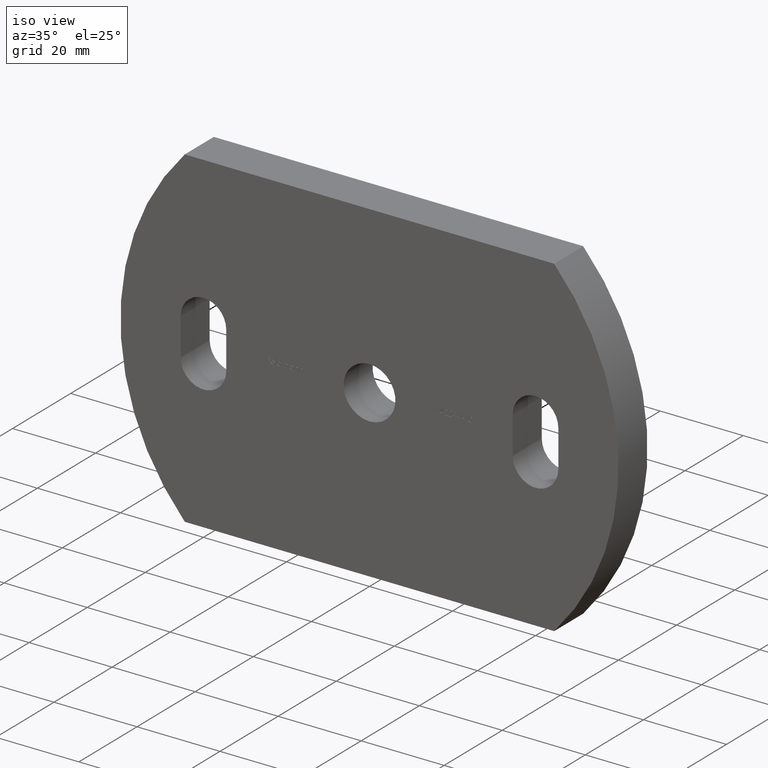
[diagram: clean part render]
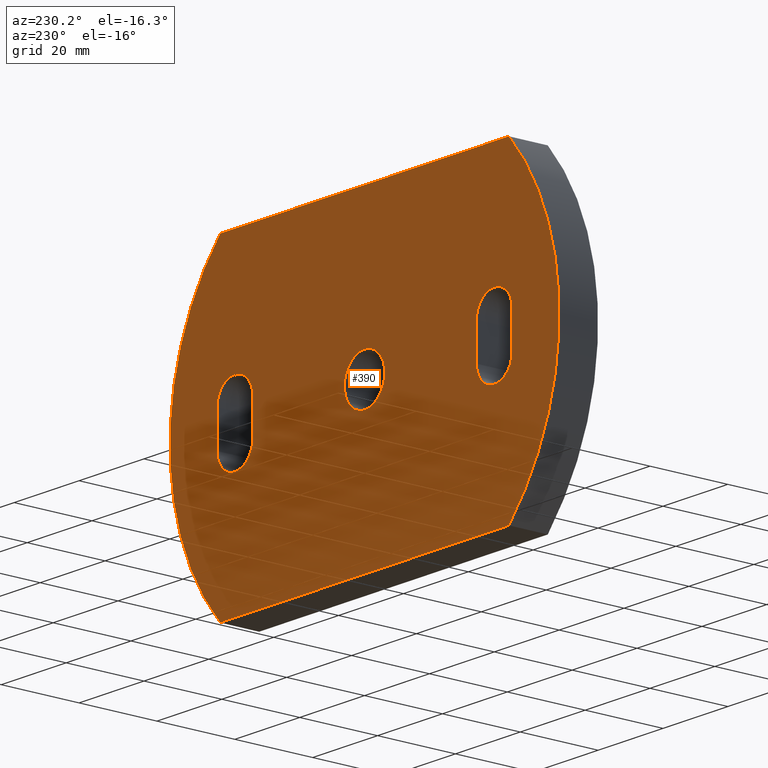
[diagram: tour spotlight — one face highlighted and labeled with its STEP entity id]
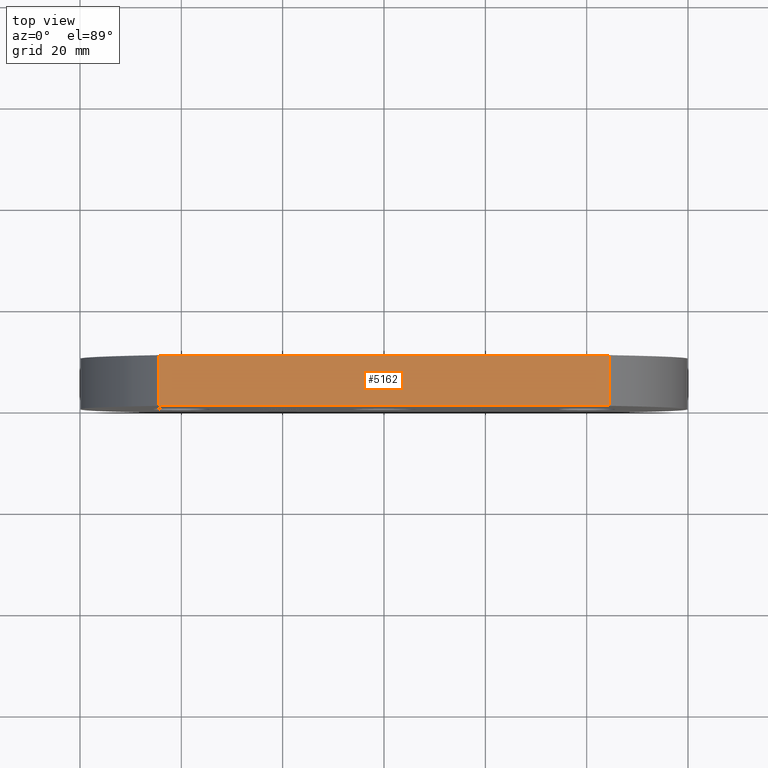
[diagram: tour spotlight — one face highlighted and labeled with its STEP entity id]
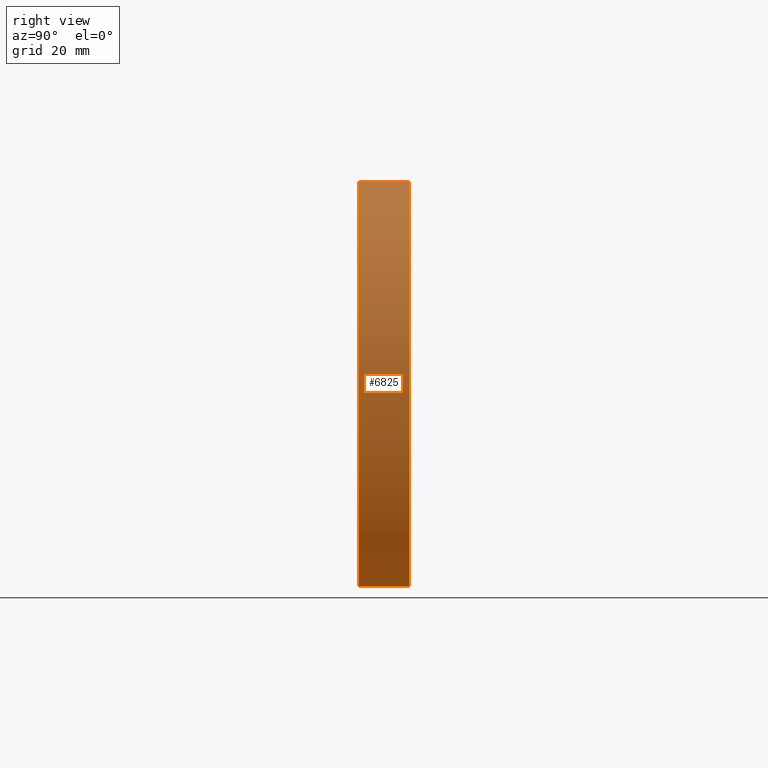
[diagram: tour spotlight — one face highlighted and labeled with its STEP entity id]
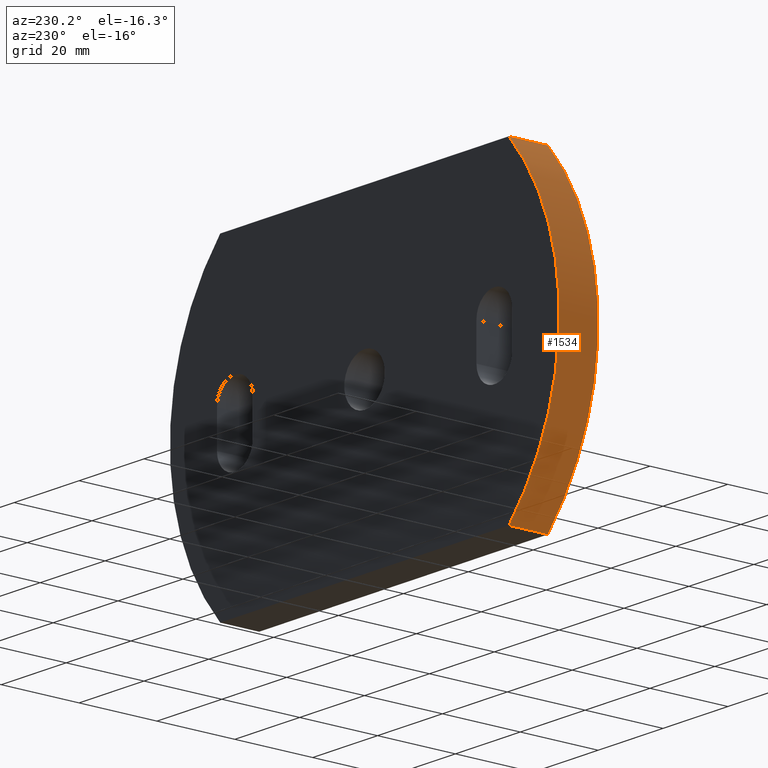
[diagram: tour spotlight — one face highlighted and labeled with its STEP entity id]
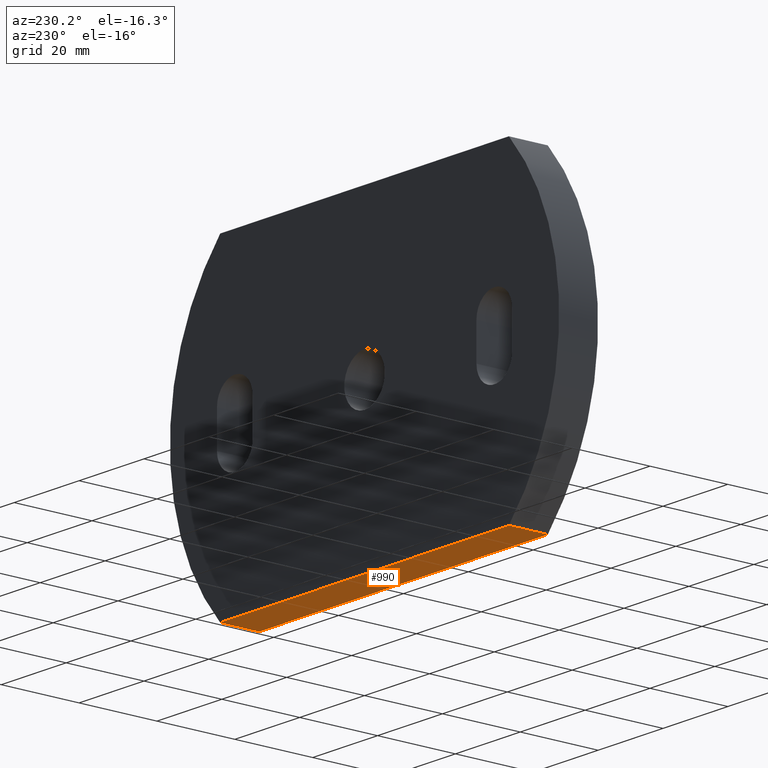
[diagram: tour spotlight — one face highlighted and labeled with its STEP entity id]
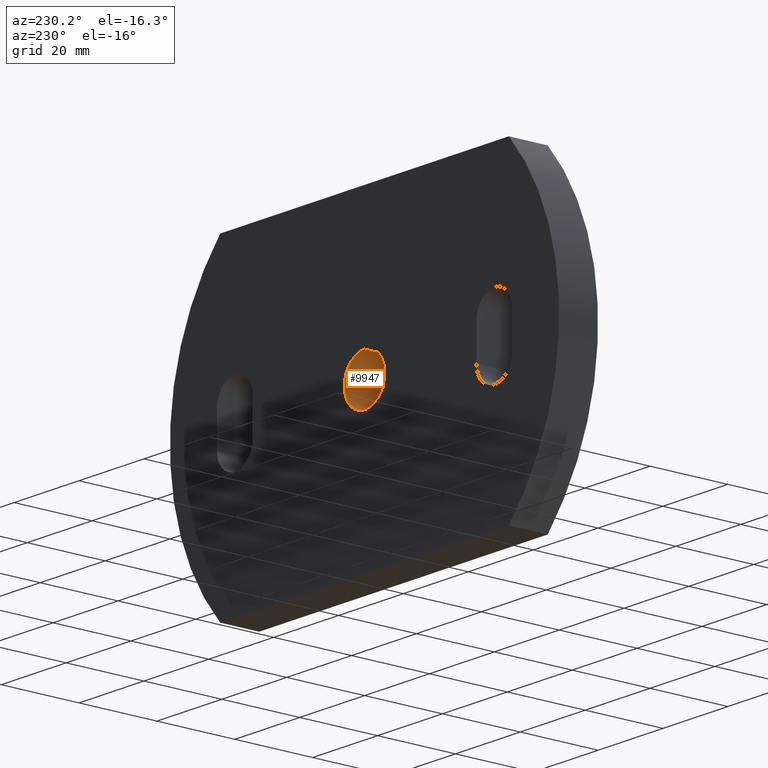
[diagram: tour spotlight — one face highlighted and labeled with its STEP entity id]
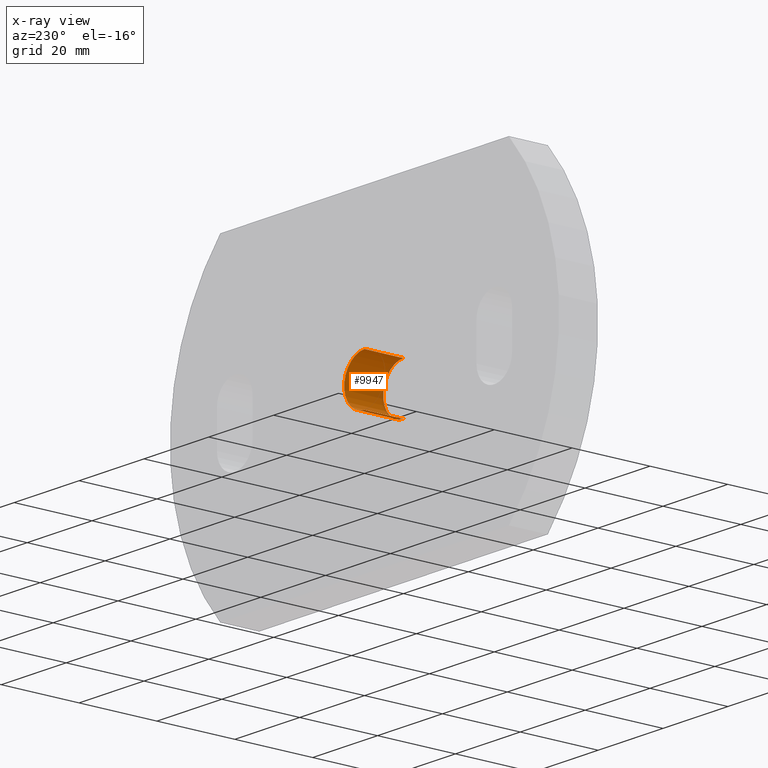
[diagram: x-ray of the same camera — body ghosted, this tour face saturated]
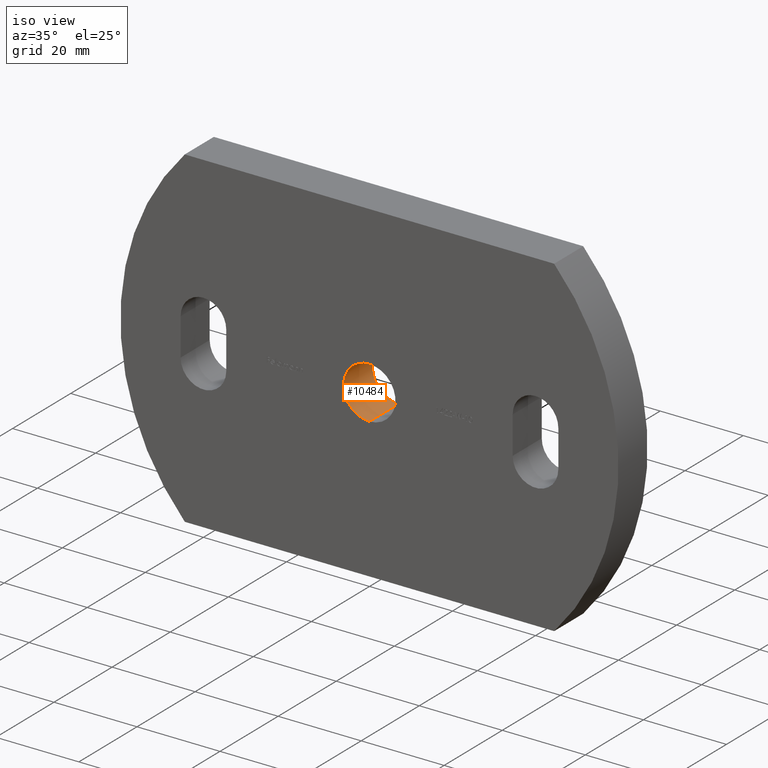
[diagram: tour spotlight — one face highlighted and labeled with its STEP entity id]
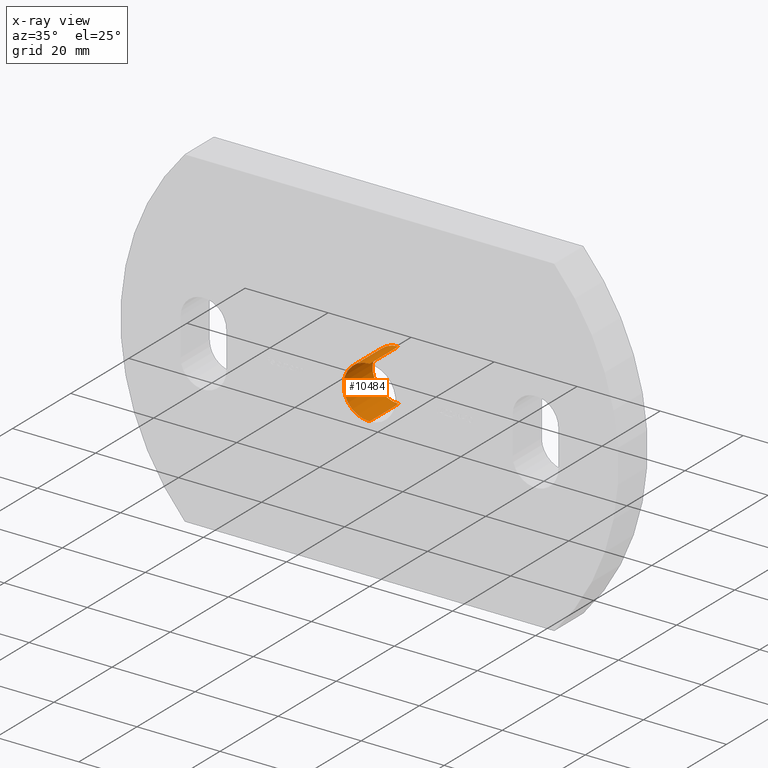
[diagram: x-ray of the same camera — body ghosted, this tour face saturated]
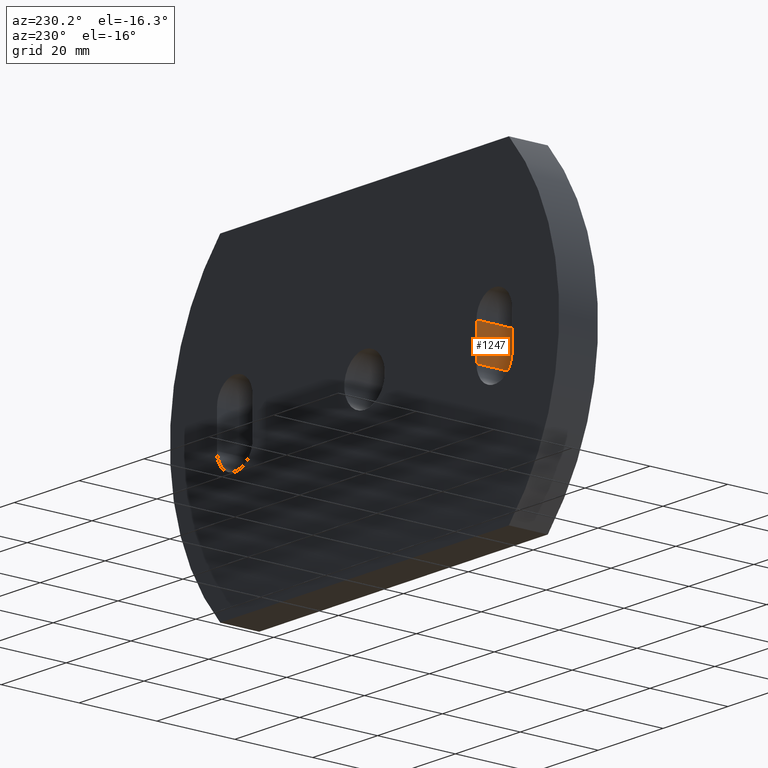
[diagram: tour spotlight — one face highlighted and labeled with its STEP entity id]
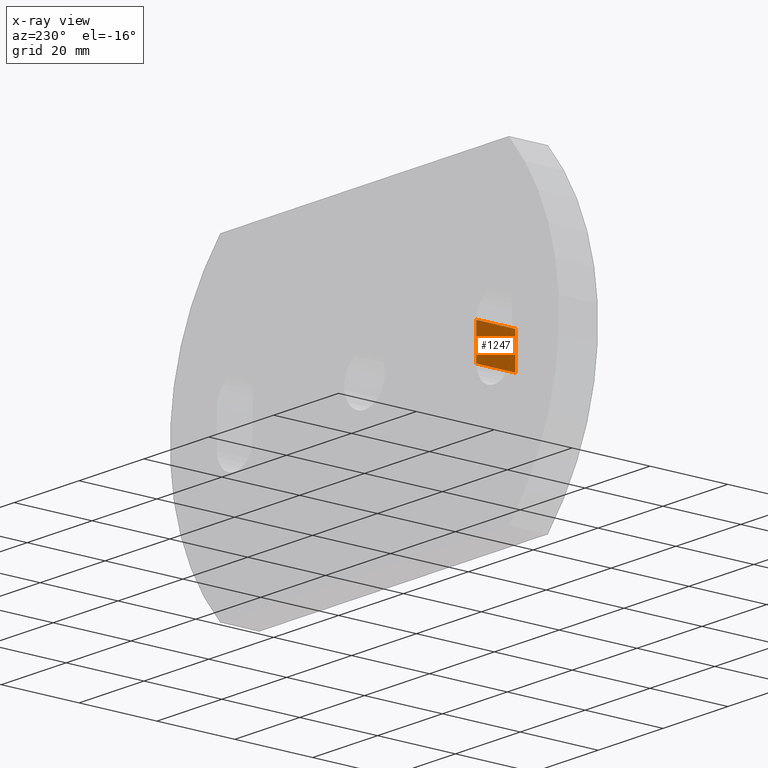
[diagram: x-ray of the same camera — body ghosted, this tour face saturated]
A machine part: a face-by-face anatomy tour. The part has 221 B-rep faces; the first image is the clean iso view, then the 8 largest visible faces are spotlighted one at a time (largest first), each with its STEP entity span.

Face 1 — auxiliary view, entity #390. In plain terms, the highlighted planar face has unit normal (0, -1, 0).
Definition (entity closure, byte-faithful):
#86 = AXIS2_PLACEMENT_3D ( 'NONE', #3558, #5206, #1950 ) ;
#124 = CARTESIAN_POINT ( 'NONE',  ( -34.50000000000000000, 10.00000000000000000, 4.499999999999987600 ) ) ;
#176 = CARTESIAN_POINT ( 'NONE',  ( 7.654042494670957600E-016, 10.00000000000000000, -6.250000000000000000 ) ) ;
#387 = LINE ( 'NONE', #2197, #8584 ) ;
#390 = ADVANCED_FACE ( 'NONE', ( #7769, #3427, #4581, #1241 ), #6717, .F. ) ;
#422 = DIRECTION ( 'NONE',  ( 0.0000000000000000000, 0.0000000000000000000, 1.000000000000000000 ) ) ;
#580 = CIRCLE ( 'NONE', #86, 59.36290322580642700 ) ;
#766 = CARTESIAN_POINT ( 'NONE',  ( 40.00000000000000000, 10.00000000000000000, -4.499999999999992900 ) ) ;
#771 = CARTESIAN_POINT ( 'NONE',  ( -40.00000000000000000, 10.00000000000000000, 4.499999999999992900 ) ) ;
#856 = CARTESIAN_POINT ( 'NONE',  ( -45.50000000000000000, 10.00000000000000000, -4.499999999999989300 ) ) ;
#916 = EDGE_CURVE ( 'NONE', #930, #8709, #7151, .T. ) ;
#921 = CARTESIAN_POINT ( 'NONE',  ( 44.49999999999997900, 10.00000000000000000, 40.00000000000001400 ) ) ;
#930 = VERTEX_POINT ( 'NONE', #1090 ) ;
#947 = DIRECTION ( 'NONE',  ( 0.0000000000000000000, 1.000000000000000000, 0.0000000000000000000 ) ) ;
#1042 = DIRECTION ( 'NONE',  ( 1.000000000000000000, 0.0000000000000000000, 2.338953001317043400E-016 ) ) ;
#1090 = CARTESIAN_POINT ( 'NONE',  ( -44.49999999999998600, 10.00000000000000000, -40.00000000000002800 ) ) ;
#1156 = ORIENTED_EDGE ( 'NONE', *, *, #9298, .F. ) ;
#1157 = AXIS2_PLACEMENT_3D ( 'NONE', #8767, #4562, #3892 ) ;
#1241 = FACE_OUTER_BOUND ( 'NONE', #10273, .T. ) ;
#1340 = CARTESIAN_POINT ( 'NONE',  ( -45.50000000000000000, 10.00000000000000000, 4.499999999999986700 ) ) ;
#1404 = DIRECTION ( 'NONE',  ( -0.0000000000000000000, -0.0000000000000000000, -1.000000000000000000 ) ) ;
#1619 = VERTEX_POINT ( 'NONE', #124 ) ;
#1651 = DIRECTION ( 'NONE',  ( 0.0000000000000000000, 0.0000000000000000000, 1.000000000000000000 ) ) ;
#1862 = EDGE_CURVE ( 'NONE', #6417, #5271, #6646, .T. ) ;
#1950 = DIRECTION ( 'NONE',  ( 0.0000000000000000000, 0.0000000000000000000, -1.000000000000000000 ) ) ;
#2050 = ORIENTED_EDGE ( 'NONE', *, *, #8925, .F. ) ;
#2094 = CIRCLE ( 'NONE', #8159, 6.250000000000000000 ) ;
#2197 = CARTESIAN_POINT ( 'NONE',  ( 45.50000000000000000, 10.00000000000000000, -4.500000000000005300 ) ) ;
#2225 = ORIENTED_EDGE ( 'NONE', *, *, #916, .T. ) ;
#2283 = VERTEX_POINT ( 'NONE', #8888 ) ;
#2317 = DIRECTION ( 'NONE',  ( 0.0000000000000000000, 0.0000000000000000000, 1.000000000000000000 ) ) ;
#2424 = ORIENTED_EDGE ( 'NONE', *, *, #3544, .F. ) ;
#2542 = CARTESIAN_POINT ( 'NONE',  ( -40.00000000000000000, 10.00000000000000000, -4.500000000000008000 ) ) ;
#2612 = ORIENTED_EDGE ( 'NONE', *, *, #4220, .F. ) ;
#2644 = EDGE_CURVE ( 'NONE', #10210, #10481, #4193, .T. ) ;
#2716 = CIRCLE ( 'NONE', #8055, 5.499999999999998200 ) ;
#2751 = LINE ( 'NONE', #5598, #4437 ) ;
#2857 = DIRECTION ( 'NONE',  ( 0.0000000000000000000, 0.0000000000000000000, 1.000000000000000000 ) ) ;
#2953 = CIRCLE ( 'NONE', #4996, 5.499999999999999100 ) ;
#3082 = LINE ( 'NONE', #8119, #5128 ) ;
#3131 = CARTESIAN_POINT ( 'NONE',  ( -40.00000000000000000, 10.00000000000000000, 9.999999999999991100 ) ) ;
#3186 = DIRECTION ( 'NONE',  ( 0.0000000000000000000, 0.0000000000000000000, 1.000000000000000000 ) ) ;
#3206 = DIRECTION ( 'NONE',  ( 0.0000000000000000000, 0.0000000000000000000, 1.000000000000000000 ) ) ;
#3263 = EDGE_CURVE ( 'NONE', #5471, #8966, #580, .T. ) ;
#3392 = DIRECTION ( 'NONE',  ( 0.0000000000000000000, 0.0000000000000000000, 1.000000000000000000 ) ) ;
#3400 = ORIENTED_EDGE ( 'NONE', *, *, #4766, .F. ) ;
#3417 = DIRECTION ( 'NONE',  ( 0.0000000000000000000, -1.000000000000000000, 0.0000000000000000000 ) ) ;
#3427 = FACE_BOUND ( 'NONE', #8897, .T. ) ;
#3544 = EDGE_CURVE ( 'NONE', #5024, #6417, #5054, .T. ) ;
#3558 = CARTESIAN_POINT ( 'NONE',  ( 0.6370967741935809100, 10.00000000000000000, 0.0000000000000000000 ) ) ;
#3647 = VERTEX_POINT ( 'NONE', #8158 ) ;
#3775 = DIRECTION ( 'NONE',  ( 0.0000000000000000000, 1.000000000000000000, 0.0000000000000000000 ) ) ;
#3892 = DIRECTION ( 'NONE',  ( 0.0000000000000000000, 0.0000000000000000000, 1.000000000000000000 ) ) ;
#4020 = CARTESIAN_POINT ( 'NONE',  ( 0.0000000000000000000, 10.00000000000000000, 0.0000000000000000000 ) ) ;
#4086 = CARTESIAN_POINT ( 'NONE',  ( 34.50000000000000000, 10.00000000000000000, -4.500000000000003600 ) ) ;
#4193 = CIRCLE ( 'NONE', #5830, 5.499999999999998200 ) ;
#4220 = EDGE_CURVE ( 'NONE', #4521, #2283, #5673, .T. ) ;
#4278 = EDGE_CURVE ( 'NONE', #2283, #4521, #2094, .T. ) ;
#4437 = VECTOR ( 'NONE', #1651, 1000.000000000000000 ) ;
#4513 = EDGE_CURVE ( 'NONE', #8709, #5471, #10444, .T. ) ;
#4521 = VERTEX_POINT ( 'NONE', #176 ) ;
#4532 = DIRECTION ( 'NONE',  ( -1.000000000000000000, -0.0000000000000000000, -1.559302000878029000E-016 ) ) ;
#4562 = DIRECTION ( 'NONE',  ( 0.0000000000000000000, 1.000000000000000000, 0.0000000000000000000 ) ) ;
#4581 = FACE_BOUND ( 'NONE', #10213, .T. ) ;
#4766 = EDGE_CURVE ( 'NONE', #10481, #4998, #2751, .T. ) ;
#4861 = CIRCLE ( 'NONE', #8990, 5.499999999999999100 ) ;
#4886 = AXIS2_PLACEMENT_3D ( 'NONE', #766, #8891, #9718 ) ;
#4996 = AXIS2_PLACEMENT_3D ( 'NONE', #771, #5696, #3206 ) ;
#4998 = VERTEX_POINT ( 'NONE', #1340 ) ;
#5024 = VERTEX_POINT ( 'NONE', #7179 ) ;
#5054 = CIRCLE ( 'NONE', #4886, 5.499999999999998200 ) ;
#5128 = VECTOR ( 'NONE', #8953, 1000.000000000000000 ) ;
#5206 = DIRECTION ( 'NONE',  ( 0.0000000000000000000, 1.000000000000000000, -0.0000000000000000000 ) ) ;
#5229 = ORIENTED_EDGE ( 'NONE', *, *, #3263, .T. ) ;
#5271 = VERTEX_POINT ( 'NONE', #6667 ) ;
#5376 = ORIENTED_EDGE ( 'NONE', *, *, #4278, .F. ) ;
#5471 = VERTEX_POINT ( 'NONE', #921 ) ;
#5559 = VERTEX_POINT ( 'NONE', #7813 ) ;
#5598 = CARTESIAN_POINT ( 'NONE',  ( -45.50000000000000000, 10.00000000000000000, -4.499999999999989300 ) ) ;
#5630 = CIRCLE ( 'NONE', #1157, 5.499999999999998200 ) ;
#5654 = LINE ( 'NONE', #10352, #9127 ) ;
#5670 = CARTESIAN_POINT ( 'NONE',  ( 44.49999999999999300, 10.00000000000000000, -39.99999999999999300 ) ) ;
#5673 = CIRCLE ( 'NONE', #10181, 6.250000000000000000 ) ;
#5696 = DIRECTION ( 'NONE',  ( 0.0000000000000000000, 1.000000000000000000, 0.0000000000000000000 ) ) ;
#5805 = ORIENTED_EDGE ( 'NONE', *, *, #4513, .T. ) ;
#5830 = AXIS2_PLACEMENT_3D ( 'NONE', #2542, #7514, #8223 ) ;
#6027 = CARTESIAN_POINT ( 'NONE',  ( -0.6370967741935185100, 10.00000000000000000, 0.0000000000000000000 ) ) ;
#6172 = EDGE_CURVE ( 'NONE', #8966, #930, #5654, .T. ) ;
#6417 = VERTEX_POINT ( 'NONE', #4086 ) ;
#6579 = ORIENTED_EDGE ( 'NONE', *, *, #9366, .F. ) ;
#6646 = LINE ( 'NONE', #9008, #9058 ) ;
#6667 = CARTESIAN_POINT ( 'NONE',  ( 34.50000000000000000, 10.00000000000000000, 4.500000000000001800 ) ) ;
#6709 = CARTESIAN_POINT ( 'NONE',  ( -44.50000000000002100, 10.00000000000000000, 39.99999999999999300 ) ) ;
#6717 = PLANE ( 'NONE',  #7549 ) ;
#6954 = AXIS2_PLACEMENT_3D ( 'NONE', #6027, #7739, #2857 ) ;
#7005 = ORIENTED_EDGE ( 'NONE', *, *, #6172, .T. ) ;
#7131 = EDGE_CURVE ( 'NONE', #5271, #3647, #2716, .T. ) ;
#7132 = DIRECTION ( 'NONE',  ( 0.0000000000000000000, 1.000000000000000000, 0.0000000000000000000 ) ) ;
#7151 = CIRCLE ( 'NONE', #6954, 59.36290322580647700 ) ;
#7179 = CARTESIAN_POINT ( 'NONE',  ( 45.50000000000000000, 10.00000000000000000, -4.500000000000005300 ) ) ;
#7226 = CARTESIAN_POINT ( 'NONE',  ( 0.0000000000000000000, 10.00000000000000000, 0.0000000000000000000 ) ) ;
#7486 = DIRECTION ( 'NONE',  ( 0.0000000000000000000, 0.0000000000000000000, 1.000000000000000000 ) ) ;
#7514 = DIRECTION ( 'NONE',  ( 0.0000000000000000000, 1.000000000000000000, 0.0000000000000000000 ) ) ;
#7522 = DIRECTION ( 'NONE',  ( 0.0000000000000000000, -0.0000000000000000000, -1.000000000000000000 ) ) ;
#7549 = AXIS2_PLACEMENT_3D ( 'NONE', #8311, #3417, #7522 ) ;
#7628 = EDGE_LOOP ( 'NONE', ( #9384, #2424, #6579, #2050, #10061 ) ) ;
#7739 = DIRECTION ( 'NONE',  ( 0.0000000000000000000, 1.000000000000000000, 0.0000000000000000000 ) ) ;
#7745 = VECTOR ( 'NONE', #1042, 1000.000000000000000 ) ;
#7769 = FACE_BOUND ( 'NONE', #7628, .T. ) ;
#7813 = CARTESIAN_POINT ( 'NONE',  ( 45.50000000000000000, 10.00000000000000000, 4.500000000000005300 ) ) ;
#7865 = VERTEX_POINT ( 'NONE', #3131 ) ;
#8055 = AXIS2_PLACEMENT_3D ( 'NONE', #10082, #947, #7486 ) ;
#8078 = ORIENTED_EDGE ( 'NONE', *, *, #2644, .F. ) ;
#8119 = CARTESIAN_POINT ( 'NONE',  ( -34.50000000000000000, 10.00000000000000000, -4.499999999999987600 ) ) ;
#8127 = EDGE_CURVE ( 'NONE', #1619, #10210, #3082, .T. ) ;
#8158 = CARTESIAN_POINT ( 'NONE',  ( 40.00000000000000000, 10.00000000000000000, 10.00000000000000500 ) ) ;
#8159 = AXIS2_PLACEMENT_3D ( 'NONE', #4020, #9874, #3186 ) ;
#8223 = DIRECTION ( 'NONE',  ( 0.0000000000000000000, 0.0000000000000000000, 1.000000000000000000 ) ) ;
#8311 = CARTESIAN_POINT ( 'NONE',  ( 0.6370967741935809100, 10.00000000000000000, 0.0000000000000000000 ) ) ;
#8584 = VECTOR ( 'NONE', #1404, 1000.000000000000000 ) ;
#8650 = CARTESIAN_POINT ( 'NONE',  ( -40.00000000000000000, 10.00000000000000000, 4.499999999999992900 ) ) ;
#8709 = VERTEX_POINT ( 'NONE', #9024 ) ;
#8767 = CARTESIAN_POINT ( 'NONE',  ( 40.00000000000000000, 10.00000000000000000, 4.500000000000007100 ) ) ;
#8838 = ORIENTED_EDGE ( 'NONE', *, *, #9497, .F. ) ;
#8888 = CARTESIAN_POINT ( 'NONE',  ( 0.0000000000000000000, 10.00000000000000000, 6.250000000000000000 ) ) ;
#8891 = DIRECTION ( 'NONE',  ( 0.0000000000000000000, 1.000000000000000000, 0.0000000000000000000 ) ) ;
#8897 = EDGE_LOOP ( 'NONE', ( #3400, #8078, #10083, #8838, #1156 ) ) ;
#8925 = EDGE_CURVE ( 'NONE', #3647, #5559, #5630, .T. ) ;
#8953 = DIRECTION ( 'NONE',  ( -0.0000000000000000000, -0.0000000000000000000, -1.000000000000000000 ) ) ;
#8966 = VERTEX_POINT ( 'NONE', #5670 ) ;
#8990 = AXIS2_PLACEMENT_3D ( 'NONE', #8650, #3775, #422 ) ;
#9008 = CARTESIAN_POINT ( 'NONE',  ( 34.50000000000000000, 10.00000000000000000, -4.500000000000003600 ) ) ;
#9024 = CARTESIAN_POINT ( 'NONE',  ( -44.50000000000002100, 10.00000000000000000, 39.99999999999999300 ) ) ;
#9058 = VECTOR ( 'NONE', #3392, 1000.000000000000000 ) ;
#9127 = VECTOR ( 'NONE', #4532, 1000.000000000000000 ) ;
#9298 = EDGE_CURVE ( 'NONE', #4998, #7865, #4861, .T. ) ;
#9366 = EDGE_CURVE ( 'NONE', #5559, #5024, #387, .T. ) ;
#9384 = ORIENTED_EDGE ( 'NONE', *, *, #1862, .F. ) ;
#9497 = EDGE_CURVE ( 'NONE', #7865, #1619, #2953, .T. ) ;
#9718 = DIRECTION ( 'NONE',  ( 0.0000000000000000000, 0.0000000000000000000, 1.000000000000000000 ) ) ;
#9874 = DIRECTION ( 'NONE',  ( 0.0000000000000000000, 1.000000000000000000, 0.0000000000000000000 ) ) ;
#10061 = ORIENTED_EDGE ( 'NONE', *, *, #7131, .F. ) ;
#10082 = CARTESIAN_POINT ( 'NONE',  ( 40.00000000000000000, 10.00000000000000000, 4.500000000000007100 ) ) ;
#10083 = ORIENTED_EDGE ( 'NONE', *, *, #8127, .F. ) ;
#10181 = AXIS2_PLACEMENT_3D ( 'NONE', #7226, #7132, #2317 ) ;
#10210 = VERTEX_POINT ( 'NONE', #10221 ) ;
#10213 = EDGE_LOOP ( 'NONE', ( #5376, #2612 ) ) ;
#10221 = CARTESIAN_POINT ( 'NONE',  ( -34.50000000000000000, 10.00000000000000000, -4.499999999999987600 ) ) ;
#10273 = EDGE_LOOP ( 'NONE', ( #5229, #7005, #2225, #5805 ) ) ;
#10352 = CARTESIAN_POINT ( 'NONE',  ( -44.50000000000000000, 10.00000000000000000, -40.00000000000000700 ) ) ;
#10444 = LINE ( 'NONE', #6709, #7745 ) ;
#10481 = VERTEX_POINT ( 'NONE', #856 ) ;

Face 2 — top view, entity #5162. In plain terms, the highlighted planar face has unit normal (0, 0, -1).
Definition (entity closure, byte-faithful):
#122 = CARTESIAN_POINT ( 'NONE',  ( -44.50000000000002100, 0.0000000000000000000, 39.99999999999999300 ) ) ;
#406 = VECTOR ( 'NONE', #10250, 1000.000000000000000 ) ;
#559 = CARTESIAN_POINT ( 'NONE',  ( 44.49999999999997900, 10.00000000000000000, 40.00000000000001400 ) ) ;
#650 = EDGE_LOOP ( 'NONE', ( #6087, #2527, #1996, #1465 ) ) ;
#921 = CARTESIAN_POINT ( 'NONE',  ( 44.49999999999997900, 10.00000000000000000, 40.00000000000001400 ) ) ;
#997 = VERTEX_POINT ( 'NONE', #122 ) ;
#1042 = DIRECTION ( 'NONE',  ( 1.000000000000000000, 0.0000000000000000000, 2.338953001317043400E-016 ) ) ;
#1465 = ORIENTED_EDGE ( 'NONE', *, *, #2830, .T. ) ;
#1996 = ORIENTED_EDGE ( 'NONE', *, *, #4513, .F. ) ;
#2512 = VECTOR ( 'NONE', #4270, 1000.000000000000000 ) ;
#2527 = ORIENTED_EDGE ( 'NONE', *, *, #7239, .F. ) ;
#2830 = EDGE_CURVE ( 'NONE', #8709, #997, #3571, .T. ) ;
#2984 = VERTEX_POINT ( 'NONE', #5435 ) ;
#2996 = AXIS2_PLACEMENT_3D ( 'NONE', #5272, #5634, #4827 ) ;
#3453 = CARTESIAN_POINT ( 'NONE',  ( -44.50000000000002100, 10.00000000000000000, 39.99999999999999300 ) ) ;
#3571 = LINE ( 'NONE', #3453, #2512 ) ;
#4006 = LINE ( 'NONE', #559, #406 ) ;
#4270 = DIRECTION ( 'NONE',  ( -0.0000000000000000000, -1.000000000000000000, -0.0000000000000000000 ) ) ;
#4513 = EDGE_CURVE ( 'NONE', #8709, #5471, #10444, .T. ) ;
#4827 = DIRECTION ( 'NONE',  ( -1.000000000000000000, 0.0000000000000000000, -2.338953001317043400E-016 ) ) ;
#5162 = ADVANCED_FACE ( 'NONE', ( #9284 ), #10193, .F. ) ;
#5272 = CARTESIAN_POINT ( 'NONE',  ( -44.50000000000002100, 10.00000000000000000, 39.99999999999999300 ) ) ;
#5293 = CARTESIAN_POINT ( 'NONE',  ( -44.50000000000002100, 0.0000000000000000000, 39.99999999999999300 ) ) ;
#5435 = CARTESIAN_POINT ( 'NONE',  ( 44.49999999999997900, 0.0000000000000000000, 40.00000000000001400 ) ) ;
#5471 = VERTEX_POINT ( 'NONE', #921 ) ;
#5634 = DIRECTION ( 'NONE',  ( 2.338953001317043400E-016, 0.0000000000000000000, -1.000000000000000000 ) ) ;
#6087 = ORIENTED_EDGE ( 'NONE', *, *, #6266, .T. ) ;
#6266 = EDGE_CURVE ( 'NONE', #997, #2984, #6838, .T. ) ;
#6709 = CARTESIAN_POINT ( 'NONE',  ( -44.50000000000002100, 10.00000000000000000, 39.99999999999999300 ) ) ;
#6838 = LINE ( 'NONE', #5293, #10533 ) ;
#7239 = EDGE_CURVE ( 'NONE', #5471, #2984, #4006, .T. ) ;
#7745 = VECTOR ( 'NONE', #1042, 1000.000000000000000 ) ;
#7764 = DIRECTION ( 'NONE',  ( 1.000000000000000000, 0.0000000000000000000, 2.338953001317043400E-016 ) ) ;
#8709 = VERTEX_POINT ( 'NONE', #9024 ) ;
#9024 = CARTESIAN_POINT ( 'NONE',  ( -44.50000000000002100, 10.00000000000000000, 39.99999999999999300 ) ) ;
#9284 = FACE_OUTER_BOUND ( 'NONE', #650, .T. ) ;
#10193 = PLANE ( 'NONE',  #2996 ) ;
#10250 = DIRECTION ( 'NONE',  ( -0.0000000000000000000, -1.000000000000000000, -0.0000000000000000000 ) ) ;
#10444 = LINE ( 'NONE', #6709, #7745 ) ;
#10533 = VECTOR ( 'NONE', #7764, 1000.000000000000000 ) ;

Face 3 — right view, entity #6825. In plain terms, the highlighted cylindrical surface (partial cylindrical patch) has radius 59.3629 mm, axis along (-0, -1, -0).
Definition (entity closure, byte-faithful):
#86 = AXIS2_PLACEMENT_3D ( 'NONE', #3558, #5206, #1950 ) ;
#208 = VECTOR ( 'NONE', #5317, 1000.000000000000000 ) ;
#406 = VECTOR ( 'NONE', #10250, 1000.000000000000000 ) ;
#444 = AXIS2_PLACEMENT_3D ( 'NONE', #2935, #6152, #2152 ) ;
#559 = CARTESIAN_POINT ( 'NONE',  ( 44.49999999999997900, 10.00000000000000000, 40.00000000000001400 ) ) ;
#580 = CIRCLE ( 'NONE', #86, 59.36290322580642700 ) ;
#897 = AXIS2_PLACEMENT_3D ( 'NONE', #3488, #9277, #4230 ) ;
#921 = CARTESIAN_POINT ( 'NONE',  ( 44.49999999999997900, 10.00000000000000000, 40.00000000000001400 ) ) ;
#1950 = DIRECTION ( 'NONE',  ( 0.0000000000000000000, 0.0000000000000000000, -1.000000000000000000 ) ) ;
#2152 = DIRECTION ( 'NONE',  ( 0.0000000000000000000, 0.0000000000000000000, -1.000000000000000000 ) ) ;
#2318 = FACE_OUTER_BOUND ( 'NONE', #7641, .T. ) ;
#2935 = CARTESIAN_POINT ( 'NONE',  ( 0.6370967741935809100, 10.00000000000000000, 0.0000000000000000000 ) ) ;
#2984 = VERTEX_POINT ( 'NONE', #5435 ) ;
#3072 = VERTEX_POINT ( 'NONE', #7123 ) ;
#3263 = EDGE_CURVE ( 'NONE', #5471, #8966, #580, .T. ) ;
#3317 = EDGE_CURVE ( 'NONE', #8966, #3072, #8264, .T. ) ;
#3488 = CARTESIAN_POINT ( 'NONE',  ( 0.6370967741935809100, 0.0000000000000000000, 0.0000000000000000000 ) ) ;
#3558 = CARTESIAN_POINT ( 'NONE',  ( 0.6370967741935809100, 10.00000000000000000, 0.0000000000000000000 ) ) ;
#4006 = LINE ( 'NONE', #559, #406 ) ;
#4230 = DIRECTION ( 'NONE',  ( 0.0000000000000000000, 0.0000000000000000000, -1.000000000000000000 ) ) ;
#4260 = CYLINDRICAL_SURFACE ( 'NONE', #444, 59.36290322580642700 ) ;
#5206 = DIRECTION ( 'NONE',  ( 0.0000000000000000000, 1.000000000000000000, -0.0000000000000000000 ) ) ;
#5317 = DIRECTION ( 'NONE',  ( -0.0000000000000000000, -1.000000000000000000, -0.0000000000000000000 ) ) ;
#5435 = CARTESIAN_POINT ( 'NONE',  ( 44.49999999999997900, 0.0000000000000000000, 40.00000000000001400 ) ) ;
#5471 = VERTEX_POINT ( 'NONE', #921 ) ;
#5670 = CARTESIAN_POINT ( 'NONE',  ( 44.49999999999999300, 10.00000000000000000, -39.99999999999999300 ) ) ;
#6152 = DIRECTION ( 'NONE',  ( -0.0000000000000000000, -1.000000000000000000, -0.0000000000000000000 ) ) ;
#6825 = ADVANCED_FACE ( 'NONE', ( #2318 ), #4260, .T. ) ;
#7123 = CARTESIAN_POINT ( 'NONE',  ( 44.49999999999999300, 0.0000000000000000000, -39.99999999999999300 ) ) ;
#7239 = EDGE_CURVE ( 'NONE', #5471, #2984, #4006, .T. ) ;
#7641 = EDGE_LOOP ( 'NONE', ( #10234, #8588, #9032, #7981 ) ) ;
#7981 = ORIENTED_EDGE ( 'NONE', *, *, #7239, .T. ) ;
#8264 = LINE ( 'NONE', #10203, #208 ) ;
#8588 = ORIENTED_EDGE ( 'NONE', *, *, #3317, .F. ) ;
#8966 = VERTEX_POINT ( 'NONE', #5670 ) ;
#9032 = ORIENTED_EDGE ( 'NONE', *, *, #3263, .F. ) ;
#9277 = DIRECTION ( 'NONE',  ( 0.0000000000000000000, 1.000000000000000000, -0.0000000000000000000 ) ) ;
#10203 = CARTESIAN_POINT ( 'NONE',  ( 44.49999999999999300, 10.00000000000000000, -39.99999999999999300 ) ) ;
#10234 = ORIENTED_EDGE ( 'NONE', *, *, #10603, .T. ) ;
#10250 = DIRECTION ( 'NONE',  ( -0.0000000000000000000, -1.000000000000000000, -0.0000000000000000000 ) ) ;
#10256 = CIRCLE ( 'NONE', #897, 59.36290322580642700 ) ;
#10603 = EDGE_CURVE ( 'NONE', #2984, #3072, #10256, .T. ) ;

Face 4 — auxiliary view, entity #1534. In plain terms, the highlighted cylindrical surface (partial cylindrical patch) has radius 59.3629 mm, axis along (-0, -1, -0).
Definition (entity closure, byte-faithful):
#122 = CARTESIAN_POINT ( 'NONE',  ( -44.50000000000002100, 0.0000000000000000000, 39.99999999999999300 ) ) ;
#636 = ORIENTED_EDGE ( 'NONE', *, *, #3989, .T. ) ;
#916 = EDGE_CURVE ( 'NONE', #930, #8709, #7151, .T. ) ;
#930 = VERTEX_POINT ( 'NONE', #1090 ) ;
#989 = ORIENTED_EDGE ( 'NONE', *, *, #2830, .F. ) ;
#997 = VERTEX_POINT ( 'NONE', #122 ) ;
#1090 = CARTESIAN_POINT ( 'NONE',  ( -44.49999999999998600, 10.00000000000000000, -40.00000000000002800 ) ) ;
#1117 = AXIS2_PLACEMENT_3D ( 'NONE', #5050, #9072, #8357 ) ;
#1446 = EDGE_LOOP ( 'NONE', ( #636, #989, #1942, #6166 ) ) ;
#1534 = ADVANCED_FACE ( 'NONE', ( #4343 ), #6783, .T. ) ;
#1631 = DIRECTION ( 'NONE',  ( -0.0000000000000000000, -1.000000000000000000, -0.0000000000000000000 ) ) ;
#1942 = ORIENTED_EDGE ( 'NONE', *, *, #916, .F. ) ;
#2150 = LINE ( 'NONE', #6578, #8457 ) ;
#2512 = VECTOR ( 'NONE', #4270, 1000.000000000000000 ) ;
#2781 = DIRECTION ( 'NONE',  ( 0.0000000000000000000, 0.0000000000000000000, 1.000000000000000000 ) ) ;
#2830 = EDGE_CURVE ( 'NONE', #8709, #997, #3571, .T. ) ;
#2857 = DIRECTION ( 'NONE',  ( 0.0000000000000000000, 0.0000000000000000000, 1.000000000000000000 ) ) ;
#3453 = CARTESIAN_POINT ( 'NONE',  ( -44.50000000000002100, 10.00000000000000000, 39.99999999999999300 ) ) ;
#3571 = LINE ( 'NONE', #3453, #2512 ) ;
#3727 = CARTESIAN_POINT ( 'NONE',  ( -0.6370967741935185100, 0.0000000000000000000, 0.0000000000000000000 ) ) ;
#3989 = EDGE_CURVE ( 'NONE', #8437, #997, #5322, .T. ) ;
#4270 = DIRECTION ( 'NONE',  ( -0.0000000000000000000, -1.000000000000000000, -0.0000000000000000000 ) ) ;
#4343 = FACE_OUTER_BOUND ( 'NONE', #1446, .T. ) ;
#5050 = CARTESIAN_POINT ( 'NONE',  ( -0.6370967741935185100, 10.00000000000000000, 0.0000000000000000000 ) ) ;
#5322 = CIRCLE ( 'NONE', #7627, 59.36290322580647700 ) ;
#5380 = DIRECTION ( 'NONE',  ( 0.0000000000000000000, 1.000000000000000000, 0.0000000000000000000 ) ) ;
#6027 = CARTESIAN_POINT ( 'NONE',  ( -0.6370967741935185100, 10.00000000000000000, 0.0000000000000000000 ) ) ;
#6166 = ORIENTED_EDGE ( 'NONE', *, *, #9787, .T. ) ;
#6578 = CARTESIAN_POINT ( 'NONE',  ( -44.49999999999998600, 10.00000000000000000, -40.00000000000002800 ) ) ;
#6783 = CYLINDRICAL_SURFACE ( 'NONE', #1117, 59.36290322580647700 ) ;
#6954 = AXIS2_PLACEMENT_3D ( 'NONE', #6027, #7739, #2857 ) ;
#7151 = CIRCLE ( 'NONE', #6954, 59.36290322580647700 ) ;
#7627 = AXIS2_PLACEMENT_3D ( 'NONE', #3727, #5380, #2781 ) ;
#7739 = DIRECTION ( 'NONE',  ( 0.0000000000000000000, 1.000000000000000000, 0.0000000000000000000 ) ) ;
#8332 = CARTESIAN_POINT ( 'NONE',  ( -44.49999999999998600, 0.0000000000000000000, -40.00000000000002800 ) ) ;
#8357 = DIRECTION ( 'NONE',  ( 0.0000000000000000000, 0.0000000000000000000, -1.000000000000000000 ) ) ;
#8437 = VERTEX_POINT ( 'NONE', #8332 ) ;
#8457 = VECTOR ( 'NONE', #1631, 1000.000000000000000 ) ;
#8709 = VERTEX_POINT ( 'NONE', #9024 ) ;
#9024 = CARTESIAN_POINT ( 'NONE',  ( -44.50000000000002100, 10.00000000000000000, 39.99999999999999300 ) ) ;
#9072 = DIRECTION ( 'NONE',  ( -0.0000000000000000000, -1.000000000000000000, -0.0000000000000000000 ) ) ;
#9787 = EDGE_CURVE ( 'NONE', #930, #8437, #2150, .T. ) ;

Face 5 — auxiliary view, entity #990. In plain terms, the highlighted planar face has unit normal (-0, 0, 1).
Definition (entity closure, byte-faithful):
#197 = VECTOR ( 'NONE', #3548, 1000.000000000000000 ) ;
#208 = VECTOR ( 'NONE', #5317, 1000.000000000000000 ) ;
#308 = PLANE ( 'NONE',  #1848 ) ;
#930 = VERTEX_POINT ( 'NONE', #1090 ) ;
#990 = ADVANCED_FACE ( 'NONE', ( #1377 ), #308, .F. ) ;
#1090 = CARTESIAN_POINT ( 'NONE',  ( -44.49999999999998600, 10.00000000000000000, -40.00000000000002800 ) ) ;
#1377 = FACE_OUTER_BOUND ( 'NONE', #3196, .T. ) ;
#1631 = DIRECTION ( 'NONE',  ( -0.0000000000000000000, -1.000000000000000000, -0.0000000000000000000 ) ) ;
#1764 = ORIENTED_EDGE ( 'NONE', *, *, #3778, .T. ) ;
#1848 = AXIS2_PLACEMENT_3D ( 'NONE', #8463, #10156, #9403 ) ;
#2150 = LINE ( 'NONE', #6578, #8457 ) ;
#2863 = ORIENTED_EDGE ( 'NONE', *, *, #3317, .T. ) ;
#3072 = VERTEX_POINT ( 'NONE', #7123 ) ;
#3196 = EDGE_LOOP ( 'NONE', ( #1764, #4770, #8348, #2863 ) ) ;
#3317 = EDGE_CURVE ( 'NONE', #8966, #3072, #8264, .T. ) ;
#3548 = DIRECTION ( 'NONE',  ( -1.000000000000000000, -0.0000000000000000000, -1.559302000878029000E-016 ) ) ;
#3778 = EDGE_CURVE ( 'NONE', #3072, #8437, #4569, .T. ) ;
#4320 = CARTESIAN_POINT ( 'NONE',  ( -44.50000000000000000, 0.0000000000000000000, -40.00000000000000700 ) ) ;
#4532 = DIRECTION ( 'NONE',  ( -1.000000000000000000, -0.0000000000000000000, -1.559302000878029000E-016 ) ) ;
#4569 = LINE ( 'NONE', #4320, #197 ) ;
#4770 = ORIENTED_EDGE ( 'NONE', *, *, #9787, .F. ) ;
#5317 = DIRECTION ( 'NONE',  ( -0.0000000000000000000, -1.000000000000000000, -0.0000000000000000000 ) ) ;
#5654 = LINE ( 'NONE', #10352, #9127 ) ;
#5670 = CARTESIAN_POINT ( 'NONE',  ( 44.49999999999999300, 10.00000000000000000, -39.99999999999999300 ) ) ;
#6172 = EDGE_CURVE ( 'NONE', #8966, #930, #5654, .T. ) ;
#6578 = CARTESIAN_POINT ( 'NONE',  ( -44.49999999999998600, 10.00000000000000000, -40.00000000000002800 ) ) ;
#7123 = CARTESIAN_POINT ( 'NONE',  ( 44.49999999999999300, 0.0000000000000000000, -39.99999999999999300 ) ) ;
#8264 = LINE ( 'NONE', #10203, #208 ) ;
#8332 = CARTESIAN_POINT ( 'NONE',  ( -44.49999999999998600, 0.0000000000000000000, -40.00000000000002800 ) ) ;
#8348 = ORIENTED_EDGE ( 'NONE', *, *, #6172, .F. ) ;
#8437 = VERTEX_POINT ( 'NONE', #8332 ) ;
#8457 = VECTOR ( 'NONE', #1631, 1000.000000000000000 ) ;
#8463 = CARTESIAN_POINT ( 'NONE',  ( -44.50000000000000000, 10.00000000000000000, -40.00000000000000700 ) ) ;
#8966 = VERTEX_POINT ( 'NONE', #5670 ) ;
#9127 = VECTOR ( 'NONE', #4532, 1000.000000000000000 ) ;
#9403 = DIRECTION ( 'NONE',  ( 1.000000000000000000, 0.0000000000000000000, 1.559302000878029000E-016 ) ) ;
#9787 = EDGE_CURVE ( 'NONE', #930, #8437, #2150, .T. ) ;
#10156 = DIRECTION ( 'NONE',  ( -1.559302000878029000E-016, 0.0000000000000000000, 1.000000000000000000 ) ) ;
#10203 = CARTESIAN_POINT ( 'NONE',  ( 44.49999999999999300, 10.00000000000000000, -39.99999999999999300 ) ) ;
#10352 = CARTESIAN_POINT ( 'NONE',  ( -44.50000000000000000, 10.00000000000000000, -40.00000000000000700 ) ) ;

Face 6 — auxiliary view, entity #9947. An x-ray twin of the same camera follows (body ghosted, this face saturated) — the face is partly hidden behind the body. In plain terms, the highlighted cylindrical surface (edge-blend (fillet) strip) has radius 6.25 mm, axis along (-0, 1, -0).
Definition (entity closure, byte-faithful):
#150 = CIRCLE ( 'NONE', #5025, 6.250000000000000000 ) ;
#176 = CARTESIAN_POINT ( 'NONE',  ( 7.654042494670957600E-016, 10.00000000000000000, -6.250000000000000000 ) ) ;
#1147 = FACE_OUTER_BOUND ( 'NONE', #3885, .T. ) ;
#1212 = DIRECTION ( 'NONE',  ( 0.0000000000000000000, 1.000000000000000000, 0.0000000000000000000 ) ) ;
#2094 = CIRCLE ( 'NONE', #8159, 6.250000000000000000 ) ;
#2097 = DIRECTION ( 'NONE',  ( 0.0000000000000000000, 0.0000000000000000000, 1.000000000000000000 ) ) ;
#2165 = CYLINDRICAL_SURFACE ( 'NONE', #9539, 6.250000000000000000 ) ;
#2204 = CARTESIAN_POINT ( 'NONE',  ( 0.0000000000000000000, 0.0000000000000000000, 0.0000000000000000000 ) ) ;
#2283 = VERTEX_POINT ( 'NONE', #8888 ) ;
#3186 = DIRECTION ( 'NONE',  ( 0.0000000000000000000, 0.0000000000000000000, 1.000000000000000000 ) ) ;
#3885 = EDGE_LOOP ( 'NONE', ( #4221, #4848, #6754, #7816 ) ) ;
#4020 = CARTESIAN_POINT ( 'NONE',  ( 0.0000000000000000000, 10.00000000000000000, 0.0000000000000000000 ) ) ;
#4221 = ORIENTED_EDGE ( 'NONE', *, *, #7624, .F. ) ;
#4278 = EDGE_CURVE ( 'NONE', #2283, #4521, #2094, .T. ) ;
#4335 = VERTEX_POINT ( 'NONE', #8948 ) ;
#4521 = VERTEX_POINT ( 'NONE', #176 ) ;
#4848 = ORIENTED_EDGE ( 'NONE', *, *, #6734, .F. ) ;
#5025 = AXIS2_PLACEMENT_3D ( 'NONE', #9348, #1212, #6948 ) ;
#5203 = CARTESIAN_POINT ( 'NONE',  ( 7.654042494670957600E-016, 0.0000000000000000000, -6.250000000000000000 ) ) ;
#5285 = VECTOR ( 'NONE', #7954, 1000.000000000000000 ) ;
#5756 = EDGE_CURVE ( 'NONE', #9849, #2283, #9897, .T. ) ;
#5936 = CARTESIAN_POINT ( 'NONE',  ( 0.0000000000000000000, 0.0000000000000000000, 6.250000000000000000 ) ) ;
#6734 = EDGE_CURVE ( 'NONE', #9849, #4335, #150, .T. ) ;
#6754 = ORIENTED_EDGE ( 'NONE', *, *, #5756, .T. ) ;
#6948 = DIRECTION ( 'NONE',  ( 0.0000000000000000000, 0.0000000000000000000, 1.000000000000000000 ) ) ;
#7430 = VECTOR ( 'NONE', #9446, 1000.000000000000000 ) ;
#7624 = EDGE_CURVE ( 'NONE', #4335, #4521, #10403, .T. ) ;
#7816 = ORIENTED_EDGE ( 'NONE', *, *, #4278, .T. ) ;
#7885 = CARTESIAN_POINT ( 'NONE',  ( 0.0000000000000000000, 0.0000000000000000000, 6.250000000000000000 ) ) ;
#7954 = DIRECTION ( 'NONE',  ( -0.0000000000000000000, 1.000000000000000000, -0.0000000000000000000 ) ) ;
#8159 = AXIS2_PLACEMENT_3D ( 'NONE', #4020, #9874, #3186 ) ;
#8888 = CARTESIAN_POINT ( 'NONE',  ( 0.0000000000000000000, 10.00000000000000000, 6.250000000000000000 ) ) ;
#8948 = CARTESIAN_POINT ( 'NONE',  ( 7.654042494670957600E-016, 0.0000000000000000000, -6.250000000000000000 ) ) ;
#9348 = CARTESIAN_POINT ( 'NONE',  ( 0.0000000000000000000, 0.0000000000000000000, 0.0000000000000000000 ) ) ;
#9446 = DIRECTION ( 'NONE',  ( -0.0000000000000000000, 1.000000000000000000, -0.0000000000000000000 ) ) ;
#9539 = AXIS2_PLACEMENT_3D ( 'NONE', #2204, #10282, #2097 ) ;
#9849 = VERTEX_POINT ( 'NONE', #5936 ) ;
#9874 = DIRECTION ( 'NONE',  ( 0.0000000000000000000, 1.000000000000000000, 0.0000000000000000000 ) ) ;
#9897 = LINE ( 'NONE', #7885, #5285 ) ;
#9947 = ADVANCED_FACE ( 'NONE', ( #1147 ), #2165, .F. ) ;
#10282 = DIRECTION ( 'NONE',  ( -0.0000000000000000000, 1.000000000000000000, -0.0000000000000000000 ) ) ;
#10403 = LINE ( 'NONE', #5203, #7430 ) ;

Face 7 — iso view, entity #10484. An x-ray twin of the same camera follows (body ghosted, this face saturated) — the face is partly hidden behind the body. In plain terms, the highlighted cylindrical surface (edge-blend (fillet) strip) has radius 6.25 mm, axis along (-0, 1, -0).
Definition (entity closure, byte-faithful):
#176 = CARTESIAN_POINT ( 'NONE',  ( 7.654042494670957600E-016, 10.00000000000000000, -6.250000000000000000 ) ) ;
#322 = ORIENTED_EDGE ( 'NONE', *, *, #5756, .F. ) ;
#609 = AXIS2_PLACEMENT_3D ( 'NONE', #5494, #7150, #9617 ) ;
#1790 = ORIENTED_EDGE ( 'NONE', *, *, #4220, .T. ) ;
#2283 = VERTEX_POINT ( 'NONE', #8888 ) ;
#2317 = DIRECTION ( 'NONE',  ( 0.0000000000000000000, 0.0000000000000000000, 1.000000000000000000 ) ) ;
#2543 = AXIS2_PLACEMENT_3D ( 'NONE', #8143, #9873, #3251 ) ;
#3070 = EDGE_LOOP ( 'NONE', ( #6826, #6946, #1790, #322 ) ) ;
#3251 = DIRECTION ( 'NONE',  ( 0.0000000000000000000, 0.0000000000000000000, 1.000000000000000000 ) ) ;
#4220 = EDGE_CURVE ( 'NONE', #4521, #2283, #5673, .T. ) ;
#4335 = VERTEX_POINT ( 'NONE', #8948 ) ;
#4521 = VERTEX_POINT ( 'NONE', #176 ) ;
#5203 = CARTESIAN_POINT ( 'NONE',  ( 7.654042494670957600E-016, 0.0000000000000000000, -6.250000000000000000 ) ) ;
#5285 = VECTOR ( 'NONE', #7954, 1000.000000000000000 ) ;
#5494 = CARTESIAN_POINT ( 'NONE',  ( 0.0000000000000000000, 0.0000000000000000000, 0.0000000000000000000 ) ) ;
#5673 = CIRCLE ( 'NONE', #10181, 6.250000000000000000 ) ;
#5756 = EDGE_CURVE ( 'NONE', #9849, #2283, #9897, .T. ) ;
#5936 = CARTESIAN_POINT ( 'NONE',  ( 0.0000000000000000000, 0.0000000000000000000, 6.250000000000000000 ) ) ;
#6804 = CIRCLE ( 'NONE', #609, 6.250000000000000000 ) ;
#6826 = ORIENTED_EDGE ( 'NONE', *, *, #9385, .F. ) ;
#6946 = ORIENTED_EDGE ( 'NONE', *, *, #7624, .T. ) ;
#7132 = DIRECTION ( 'NONE',  ( 0.0000000000000000000, 1.000000000000000000, 0.0000000000000000000 ) ) ;
#7150 = DIRECTION ( 'NONE',  ( 0.0000000000000000000, 1.000000000000000000, 0.0000000000000000000 ) ) ;
#7226 = CARTESIAN_POINT ( 'NONE',  ( 0.0000000000000000000, 10.00000000000000000, 0.0000000000000000000 ) ) ;
#7430 = VECTOR ( 'NONE', #9446, 1000.000000000000000 ) ;
#7624 = EDGE_CURVE ( 'NONE', #4335, #4521, #10403, .T. ) ;
#7885 = CARTESIAN_POINT ( 'NONE',  ( 0.0000000000000000000, 0.0000000000000000000, 6.250000000000000000 ) ) ;
#7954 = DIRECTION ( 'NONE',  ( -0.0000000000000000000, 1.000000000000000000, -0.0000000000000000000 ) ) ;
#8143 = CARTESIAN_POINT ( 'NONE',  ( 0.0000000000000000000, 0.0000000000000000000, 0.0000000000000000000 ) ) ;
#8888 = CARTESIAN_POINT ( 'NONE',  ( 0.0000000000000000000, 10.00000000000000000, 6.250000000000000000 ) ) ;
#8948 = CARTESIAN_POINT ( 'NONE',  ( 7.654042494670957600E-016, 0.0000000000000000000, -6.250000000000000000 ) ) ;
#9385 = EDGE_CURVE ( 'NONE', #4335, #9849, #6804, .T. ) ;
#9446 = DIRECTION ( 'NONE',  ( -0.0000000000000000000, 1.000000000000000000, -0.0000000000000000000 ) ) ;
#9478 = FACE_OUTER_BOUND ( 'NONE', #3070, .T. ) ;
#9617 = DIRECTION ( 'NONE',  ( 0.0000000000000000000, 0.0000000000000000000, 1.000000000000000000 ) ) ;
#9849 = VERTEX_POINT ( 'NONE', #5936 ) ;
#9873 = DIRECTION ( 'NONE',  ( -0.0000000000000000000, 1.000000000000000000, -0.0000000000000000000 ) ) ;
#9897 = LINE ( 'NONE', #7885, #5285 ) ;
#10181 = AXIS2_PLACEMENT_3D ( 'NONE', #7226, #7132, #2317 ) ;
#10403 = LINE ( 'NONE', #5203, #7430 ) ;
#10484 = ADVANCED_FACE ( 'NONE', ( #9478 ), #10503, .F. ) ;
#10503 = CYLINDRICAL_SURFACE ( 'NONE', #2543, 6.250000000000000000 ) ;

Face 8 — auxiliary view, entity #1247. An x-ray twin of the same camera follows (body ghosted, this face saturated) — the face is partly hidden behind the body. In plain terms, the highlighted planar face has unit normal (1, 0, -0).
Definition (entity closure, byte-faithful):
#124 = CARTESIAN_POINT ( 'NONE',  ( -34.50000000000000000, 10.00000000000000000, 4.499999999999987600 ) ) ;
#1247 = ADVANCED_FACE ( 'NONE', ( #3447 ), #10512, .F. ) ;
#1431 = AXIS2_PLACEMENT_3D ( 'NONE', #6471, #8099, #6434 ) ;
#1619 = VERTEX_POINT ( 'NONE', #124 ) ;
#2138 = EDGE_CURVE ( 'NONE', #6776, #1619, #10229, .T. ) ;
#2278 = ORIENTED_EDGE ( 'NONE', *, *, #4691, .F. ) ;
#3000 = CARTESIAN_POINT ( 'NONE',  ( -34.50000000000000000, 0.0000000000000000000, 4.499999999999987600 ) ) ;
#3082 = LINE ( 'NONE', #8119, #5128 ) ;
#3176 = DIRECTION ( 'NONE',  ( -0.0000000000000000000, -0.0000000000000000000, -1.000000000000000000 ) ) ;
#3323 = DIRECTION ( 'NONE',  ( -0.0000000000000000000, 1.000000000000000000, -0.0000000000000000000 ) ) ;
#3447 = FACE_OUTER_BOUND ( 'NONE', #7426, .T. ) ;
#4691 = EDGE_CURVE ( 'NONE', #6776, #8879, #9791, .T. ) ;
#4995 = ORIENTED_EDGE ( 'NONE', *, *, #5429, .F. ) ;
#5075 = VECTOR ( 'NONE', #9541, 1000.000000000000000 ) ;
#5128 = VECTOR ( 'NONE', #8953, 1000.000000000000000 ) ;
#5429 = EDGE_CURVE ( 'NONE', #8879, #10210, #7729, .T. ) ;
#5540 = VECTOR ( 'NONE', #3323, 1000.000000000000000 ) ;
#5560 = ORIENTED_EDGE ( 'NONE', *, *, #2138, .T. ) ;
#5737 = CARTESIAN_POINT ( 'NONE',  ( -34.50000000000000000, 0.0000000000000000000, -4.499999999999987600 ) ) ;
#6286 = CARTESIAN_POINT ( 'NONE',  ( -34.50000000000000000, 0.0000000000000000000, 4.499999999999987600 ) ) ;
#6434 = DIRECTION ( 'NONE',  ( -0.0000000000000000000, 0.0000000000000000000, -1.000000000000000000 ) ) ;
#6471 = CARTESIAN_POINT ( 'NONE',  ( -34.50000000000000000, 0.0000000000000000000, -4.499999999999987600 ) ) ;
#6776 = VERTEX_POINT ( 'NONE', #6286 ) ;
#6964 = CARTESIAN_POINT ( 'NONE',  ( -34.50000000000000000, 0.0000000000000000000, -4.499999999999987600 ) ) ;
#7426 = EDGE_LOOP ( 'NONE', ( #7618, #4995, #2278, #5560 ) ) ;
#7618 = ORIENTED_EDGE ( 'NONE', *, *, #8127, .T. ) ;
#7729 = LINE ( 'NONE', #5737, #5540 ) ;
#7962 = CARTESIAN_POINT ( 'NONE',  ( -34.50000000000000000, 0.0000000000000000000, -4.499999999999987600 ) ) ;
#8099 = DIRECTION ( 'NONE',  ( 1.000000000000000000, 0.0000000000000000000, -0.0000000000000000000 ) ) ;
#8119 = CARTESIAN_POINT ( 'NONE',  ( -34.50000000000000000, 10.00000000000000000, -4.499999999999987600 ) ) ;
#8127 = EDGE_CURVE ( 'NONE', #1619, #10210, #3082, .T. ) ;
#8879 = VERTEX_POINT ( 'NONE', #6964 ) ;
#8953 = DIRECTION ( 'NONE',  ( -0.0000000000000000000, -0.0000000000000000000, -1.000000000000000000 ) ) ;
#9541 = DIRECTION ( 'NONE',  ( -0.0000000000000000000, 1.000000000000000000, -0.0000000000000000000 ) ) ;
#9791 = LINE ( 'NONE', #7962, #10431 ) ;
#10210 = VERTEX_POINT ( 'NONE', #10221 ) ;
#10221 = CARTESIAN_POINT ( 'NONE',  ( -34.50000000000000000, 10.00000000000000000, -4.499999999999987600 ) ) ;
#10229 = LINE ( 'NONE', #3000, #5075 ) ;
#10431 = VECTOR ( 'NONE', #3176, 1000.000000000000000 ) ;
#10512 = PLANE ( 'NONE',  #1431 ) ;